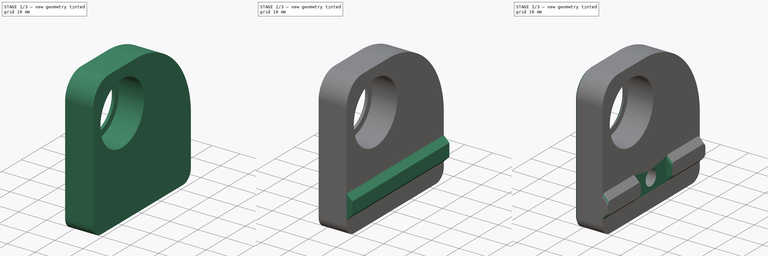
[diagram: build sequence overview — one tinted view per stage of 3, left to right]
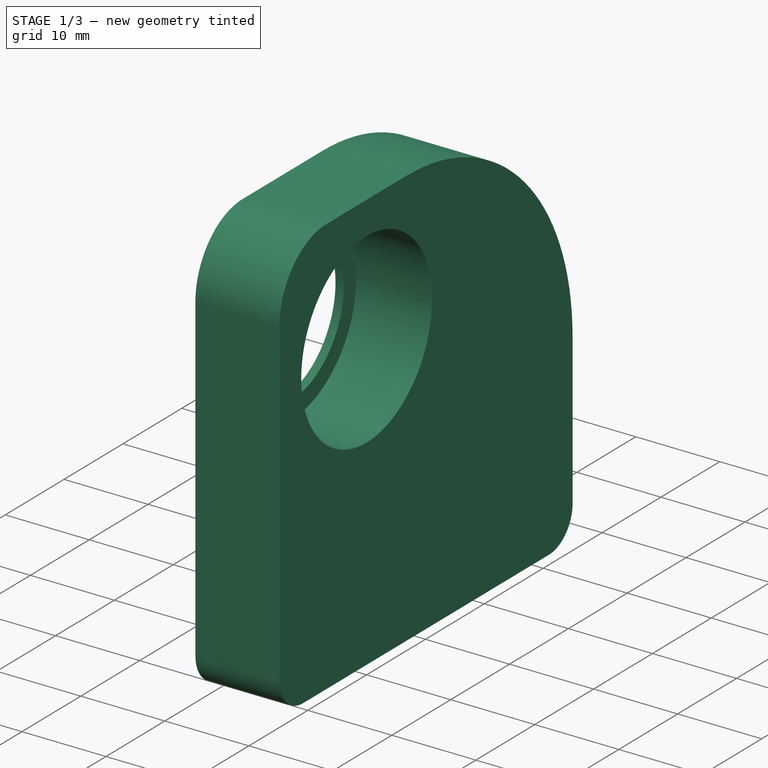
[diagram: stage 1 of 3 — iso view after this stage's code; geometry added in this stage tinted green]
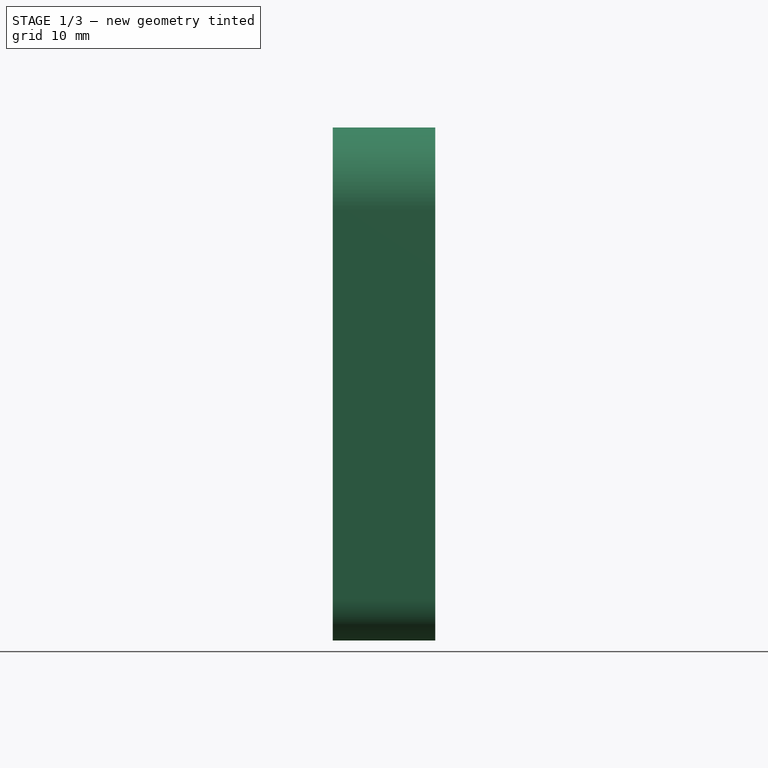
[diagram: stage 1 of 3 — front view after this stage's code; geometry added in this stage tinted green]
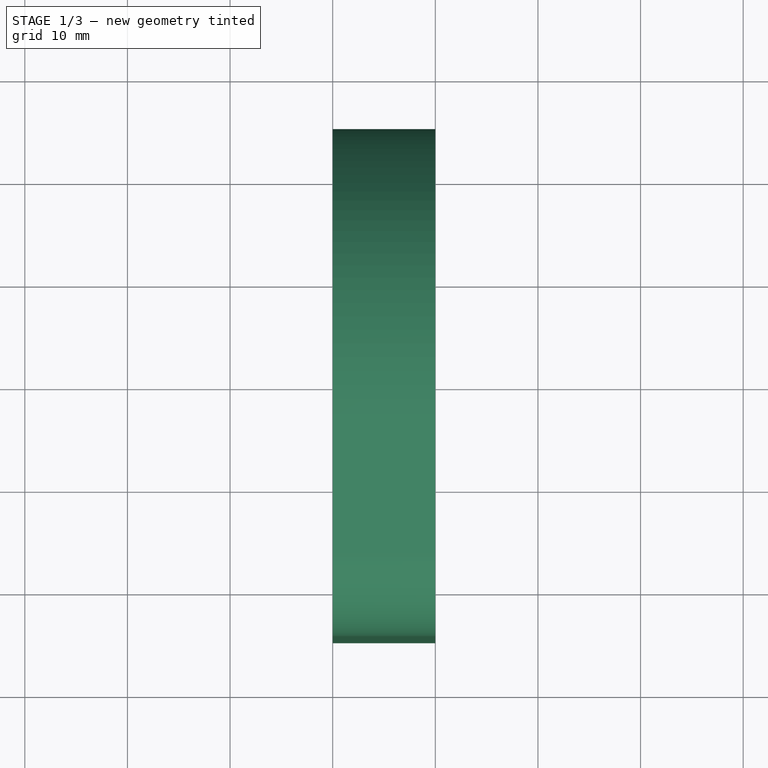
[diagram: stage 1 of 3 — top view after this stage's code; geometry added in this stage tinted green]
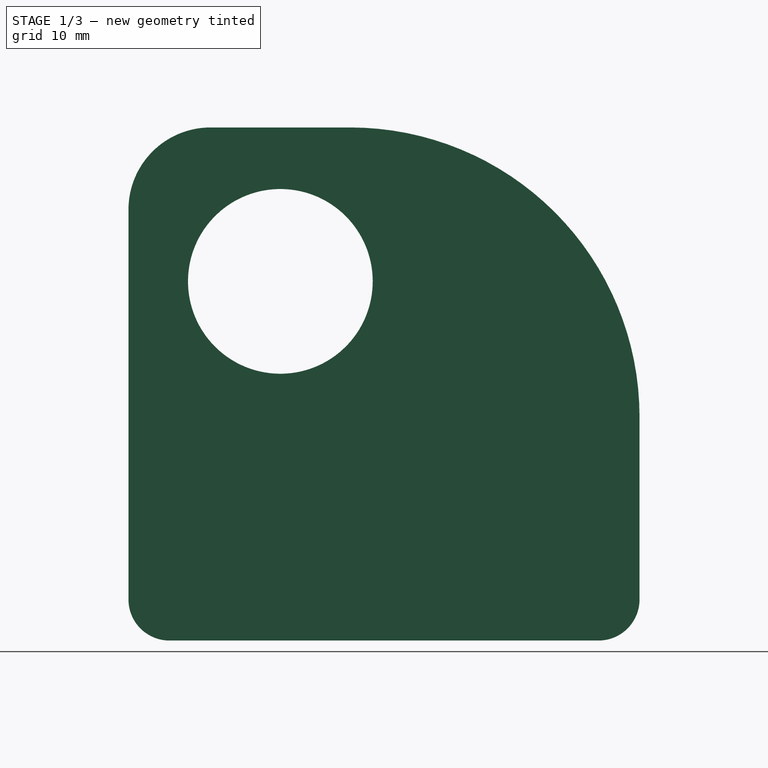
[diagram: stage 1 of 3 — right view after this stage's code; geometry added in this stage tinted green]
FCSTD DOCUMENT  (FreeCAD 1.0R39109 (Git))
Label: front-bearing-block-right
License: All rights reserved
LicenseURL: http://en.wikipedia.org/wiki/All_rights_reserved
objects: Sketcher::SketchObject×6, PartDesign::Pocket×4, PartDesign::Pad×2, App::Link×2, PartDesign::Fillet×1, PartDesign::Chamfer×1, PartDesign::Body×1, App::Part×1
note: 37 computed .brp shape members not serialized (recipe doc carries the construction recipe); baked Part::Feature solids carry a one-line shape summary decoded from their .brp
EXTERNAL_REF file=../standard-stuff.FCStd obj=Body
EXTERNAL_REF file=../standard-stuff.FCStd obj=Group001

FEATURE [Sketcher::SketchObject] Sketch101
  ArcFitTolerance = 0
  AttachmentSupport = -> [YZ_Plane209]
  FullyConstrained = true
  MakeInternals = false
  MapMode = 5
  Placement = pos=(0,0,0) rot=(0.57735,0.57735,0.57735;2.0944rad)
  expr: Constraints[4] = 35 - 20.2
  sketch-geometry (14):
    g0: LineSegment StartX=-10.8 StartY=0 StartZ=0 EndX=31 EndY=0 EndZ=0
    g1: LineSegment StartX=35 StartY=4 StartZ=0 EndX=35 EndY=21.8 EndZ=0
    g2: LineSegment StartX=-14.8 StartY=42 StartZ=0 EndX=-14.8 EndY=4 EndZ=0
    g3: Circle [constr] CenterX=0 CenterY=35 CenterZ=0 NormalX=0 NormalY=0 NormalZ=1 AngleXU=0 Radius=11
    g4: Circle CenterX=0 CenterY=35 CenterZ=0 NormalX=0 NormalY=0 NormalZ=1 AngleXU=0 Radius=9
    g5: GeomPoint [constr] X=0 Y=46 Z=0
    g6: GeomPoint [constr] X=0 Y=50 Z=0
    g7: ArcOfCircle CenterX=-10.8 CenterY=4 CenterZ=0 NormalX=0 NormalY=0 NormalZ=1 AngleXU=0 Radius=4 StartAngle=3.14159 EndAngle=4.71239
    g8: GeomPoint [constr] X=-14.8 Y=0 Z=0
    g9: ArcOfCircle CenterX=31 CenterY=4 CenterZ=0 NormalX=0 NormalY=0 NormalZ=1 AngleXU=0 Radius=4 StartAngle=4.71239 EndAngle=6.28319
    g10: GeomPoint [constr] X=35 Y=0 Z=0
    g11: ArcOfCircle CenterX=-6.8 CenterY=42 CenterZ=0 NormalX=0 NormalY=0 NormalZ=1 AngleXU=0 Radius=8 StartAngle=1.5708 EndAngle=3.14159
    g12: ArcOfCircle CenterX=6.8 CenterY=21.8 CenterZ=0 NormalX=0 NormalY=0 NormalZ=1 AngleXU=0 Radius=28.2 StartAngle=-2.7e-15 EndAngle=1.5708
    g13: LineSegment StartX=-6.8 StartY=50 StartZ=0 EndX=6.8 EndY=50 EndZ=0
  constraints (32):
    c: PointOnObject(g10,g-1)
    c: Horizontal(g0)
    c: Vertical(g1)
    c: Vertical(g2)
    c: DistanceX(g8,g-1) = 14.8
    c: Diameter(g3) = 22
    c: Diameter(g4) = 18
    c: PointOnObject(g5,g3)
    c: PointOnObject(g5,g-2)
    c: PointOnObject(g6,g-2)
    c: PointOnObject(g8,g0)
    c: PointOnObject(g8,g2)
    c: Tangent(g0,g7) = -1.5708
    c: Tangent(g2,g7) = -1.5708
    c: PointOnObject(g10,g0)
    c: PointOnObject(g10,g1)
    c: Tangent(g0,g9) = -1.5708
    c: Tangent(g1,g9) = -1.5708
    c: Equal(g9,g7)
    c: DistanceY(g6) = 50
    c: DistanceX(g10) = 35
    c: Horizontal(g13)
    c: Tangent(g12,g13) = 1.5708
    c: Tangent(g13,g11) = 1.5708
    c: Tangent(g1,g12) = -1.5708
    c: Tangent(g2,g11) = -1.5708
    c: Symmetric(g12,g11,g6)
    c: Radius(g11) = 8
    c: Radius(g7) = 4
    c: Coincident(g4,g3)
    c: PointOnObject(g4,g-2)
    c: DistanceY(g4) = 35
FEATURE [PartDesign::Pad] Pad031
  Direction = (1,0,0)
  Length = 10
  Length2 = 10
  Placement = pos=(0,0,0) rot=(1,1,1;2.0944rad)
  Profile = -> Sketch101
  ReferenceAxis = -> Sketch101 [N_Axis]
  Reversed = true
  Suppressed = false
  Type = 0
FEATURE [Sketcher::SketchObject] Sketch102
  ArcFitTolerance = 0
  AttachmentOffset = pos=(0,0,-9) rot=(0,0,1;0rad)
  AttachmentSupport = -> [YZ_Plane209]
  FullyConstrained = true
  MakeInternals = false
  MapMode = 5
  Placement = pos=(-9,0,0) rot=(0.57735,0.57735,0.57735;2.0944rad)
  sketch-geometry (1):
    g0: Circle CenterX=0 CenterY=35 CenterZ=0 NormalX=0 NormalY=0 NormalZ=1 AngleXU=0 Radius=11.1
  constraints (3):
    c: PointOnObject(g0,g-2)
    c: Diameter(g0) = 22.2
    c: DistanceY(g0) = 35
FEATURE [PartDesign::Pocket] Pocket048
  BaseFeature = -> Pad031
  Direction = (-1,0,0)
  Length = 5
  Length2 = 5
  Placement = pos=(0,0,0) rot=(1,1,1;2.0944rad)
  Profile = -> Sketch102
  ReferenceAxis = -> Sketch102 [N_Axis]
  Reversed = true
  Suppressed = false
  Type = 1
FEATURE [Sketcher::SketchObject] Sketch103
  ArcFitTolerance = 0
  AttachmentOffset = pos=(0,0,-4) rot=(0,0,1;0rad)
  AttachmentSupport = -> [YZ_Plane209]
  FullyConstrained = true
  MakeInternals = false
  MapMode = 5
  Placement = pos=(-4,0,0) rot=(0.57735,0.57735,0.57735;2.0944rad)
  sketch-geometry (4):
    g0: Circle CenterX=10 CenterY=10 CenterZ=0 NormalX=0 NormalY=0 NormalZ=1 AngleXU=0 Radius=4.5
    g1: GeomPoint [constr] X=-15 Y=0 Z=0
    g2: GeomPoint [constr] X=35 Y=0 Z=0
    g3: GeomPoint [constr] X=10 Y=0 Z=0
  constraints (8):
    c: DistanceY(g0) = 10
    c: Diameter(g0) = 9
    c: PointOnObject(g1,g-1)
    c: PointOnObject(g2,g-1)
    c: DistanceX(g1) = -15
    c: Symmetric(g2,g1,g3)
    c: Vertical(g0,g3)
    c: DistanceX(g1,g2) = 50
FEATURE [PartDesign::Pocket] Pocket049
  BaseFeature = -> Pocket048
  Direction = (-1,0,0)
  Length = 5
  Length2 = 5
  Placement = pos=(0,0,0) rot=(1,1,1;2.0944rad)
  Profile = -> Sketch103
  ReferenceAxis = -> Sketch103 [N_Axis]
  Suppressed = false
  Type = 1
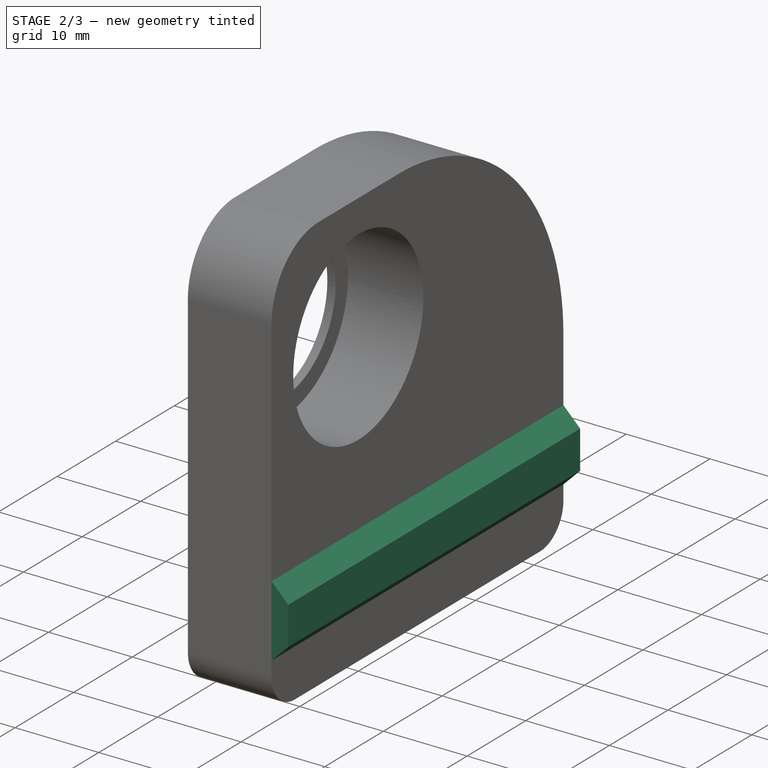
[diagram: stage 2 of 3 — iso view after this stage's code; geometry added in this stage tinted green]
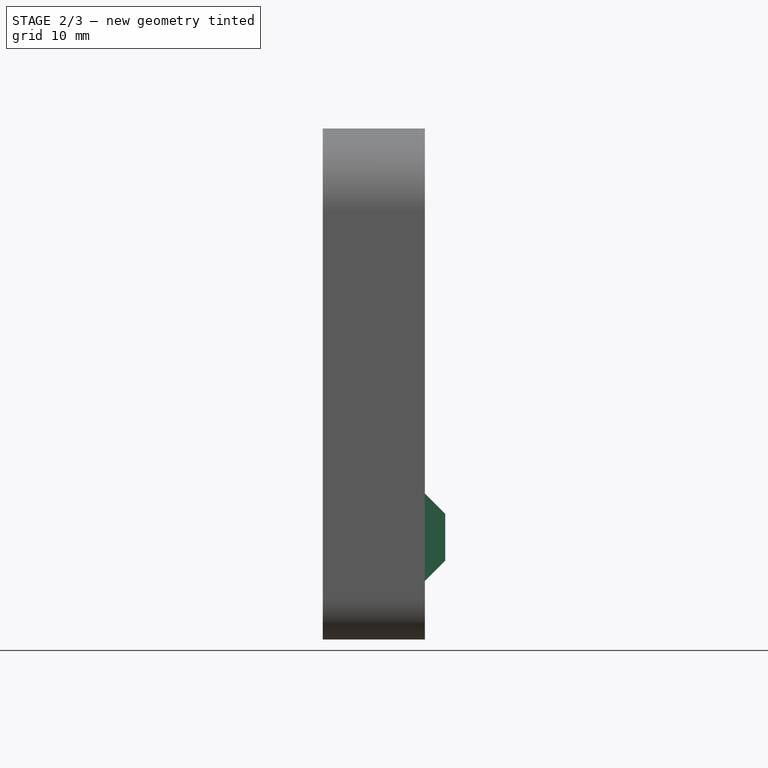
[diagram: stage 2 of 3 — front view after this stage's code; geometry added in this stage tinted green]
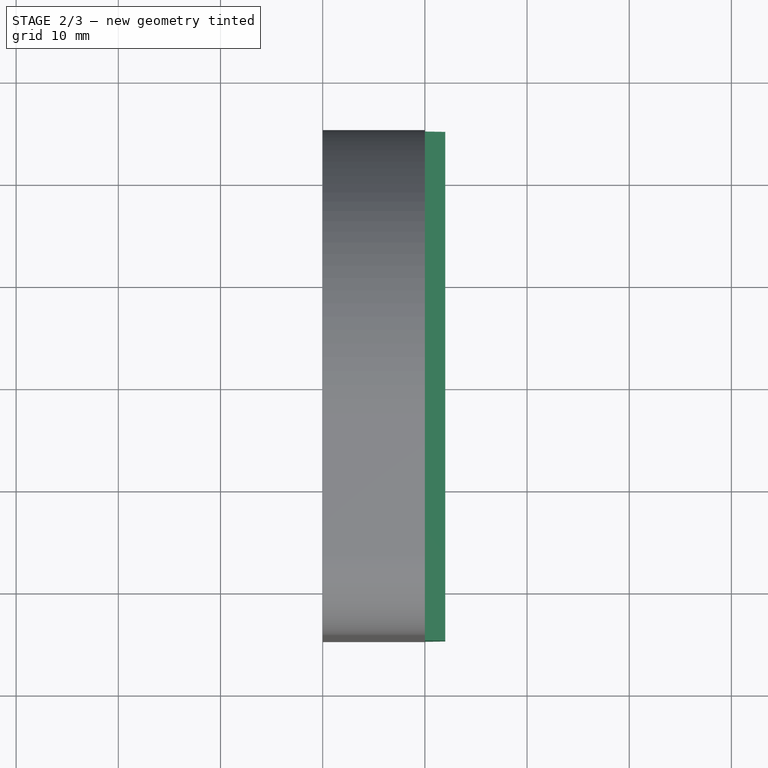
[diagram: stage 2 of 3 — top view after this stage's code; geometry added in this stage tinted green]
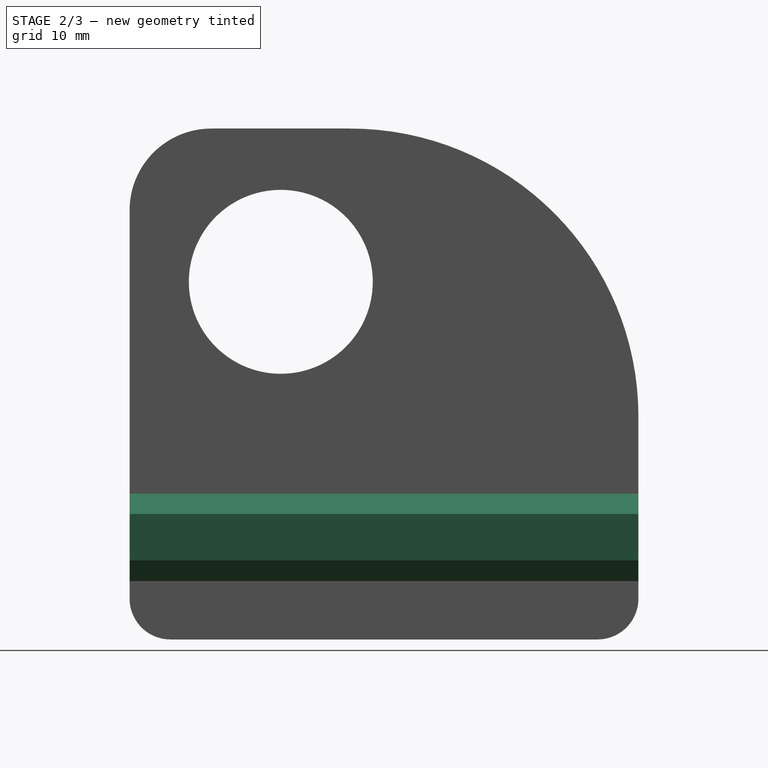
[diagram: stage 2 of 3 — right view after this stage's code; geometry added in this stage tinted green]
FEATURE [Sketcher::SketchObject] Sketch112
  ArcFitTolerance = 0
  AttachmentSupport = -> [YZ_Plane209]
  FullyConstrained = true
  MakeInternals = false
  MapMode = 5
  Placement = pos=(0,0,0) rot=(0.57735,0.57735,0.57735;2.0944rad)
  sketch-geometry (1):
    g0: Circle CenterX=10 CenterY=10 CenterZ=0 NormalX=0 NormalY=0 NormalZ=1 AngleXU=0 Radius=2.75
  constraints (3):
    c: Diameter(g0) = 5.5
    c: DistanceY(g0) = 10
    c: DistanceX(g0) = 10
FEATURE [PartDesign::Pocket] Pocket056
  BaseFeature = -> Pocket049
  Direction = (-1,0,0)
  Length = 3.7
  Length2 = 5
  Placement = pos=(0,0,0) rot=(1,1,1;2.0944rad)
  Profile = -> Sketch112
  ReferenceAxis = -> Sketch112 [N_Axis]
  Suppressed = false
  Type = 0
  expr: Length = 4 - 0.3
FEATURE [Sketcher::SketchObject] Sketch365
  ArcFitTolerance = 0
  AttachmentOffset = pos=(0,0,15) rot=(0,0,1;0rad)
  AttachmentSupport = -> [XZ_Plane209]
  FullyConstrained = true
  MakeInternals = false
  MapMode = 5
  Placement = pos=(0,-15,3.3e-15) rot=(1,0,0;1.5708rad)
  sketch-geometry (8):
    g0: LineSegment StartX=0 StartY=5.72426 StartZ=0 EndX=0 EndY=14.2757 EndZ=0
    g1: LineSegment StartX=0 StartY=14.2757 StartZ=0 EndX=2 EndY=12.2757 EndZ=0
    g2: LineSegment StartX=2 StartY=12.2757 StartZ=0 EndX=2 EndY=7.72426 EndZ=0
    g3: LineSegment StartX=2 StartY=7.72426 StartZ=0 EndX=0 EndY=5.72426 EndZ=0
    g4: GeomPoint [constr] X=0 Y=10 Z=0
    g5: GeomPoint [constr] X=2 Y=10 Z=0
    g6: GeomPoint [constr] X=2 Y=12.7 Z=0
    g7: GeomPoint [constr] X=2 Y=7.3 Z=0
  constraints (17):
    c: PointOnObject(g0,g-2)
    c: PointOnObject(g0,g-2)
    c: Coincident(g0,g1)
    c: Coincident(g1,g2)
    c: Coincident(g2,g3)
    c: Coincident(g3,g0)
    c: Symmetric(g2,g1,g5)
    c: Vertical(g2)
    c: Horizontal(g4,g5)
    c: Symmetric(g0,g0,g4)
    c: DistanceY(g4) = 10
    c: Angle(g1) = -0.785398
    c: DistanceX(g1,g1) = 2
    c: Symmetric(g7,g6,g5)
    c: Vertical(g6,g1)
    c: DistanceY(g7,g6) = 5.4
    c: Distance(g6,g1) = 0.3
FEATURE [PartDesign::Pad] Pad091
  BaseFeature = -> Pocket056
  Direction = (0,-1,2e-16)
  Length = 50
  Length2 = -0.2
  Placement = pos=(0,0,0) rot=(1,1,1;2.0944rad)
  Profile = -> Sketch365
  ReferenceAxis = -> Sketch365 [N_Axis]
  Reversed = true
  Suppressed = false
  Type = 4
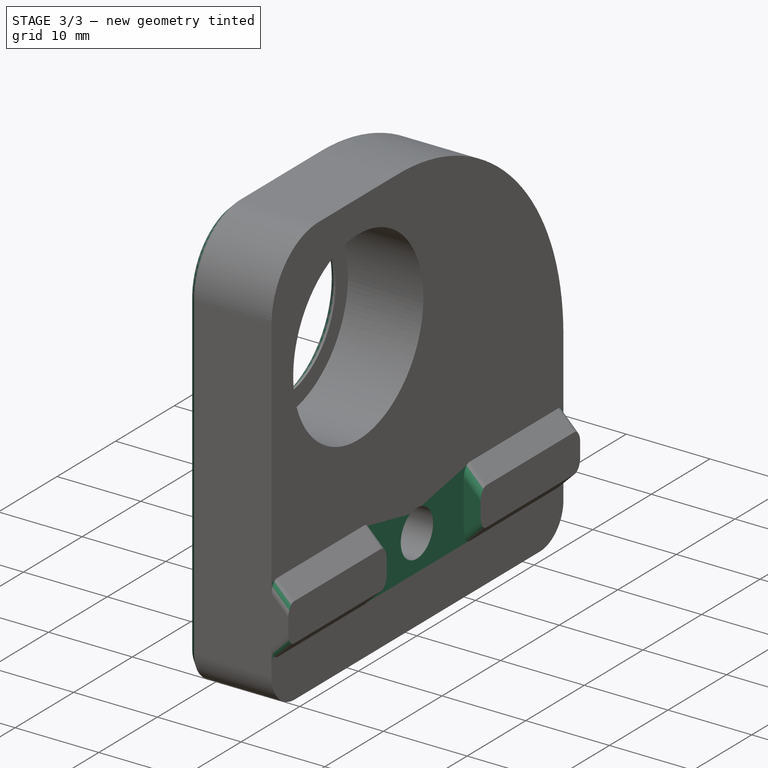
[diagram: stage 3 of 3 — iso view after this stage's code; geometry added in this stage tinted green]
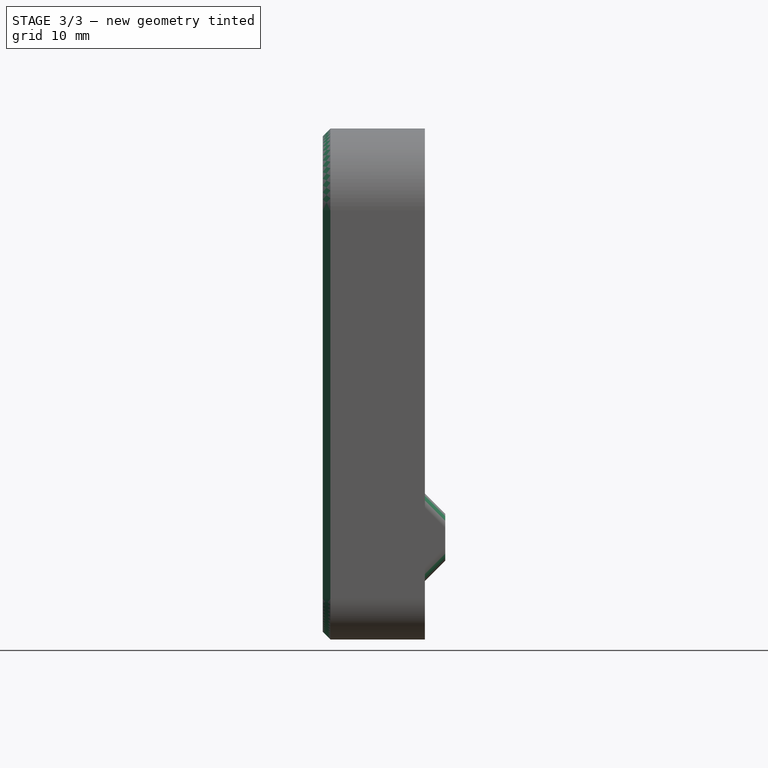
[diagram: stage 3 of 3 — front view after this stage's code; geometry added in this stage tinted green]
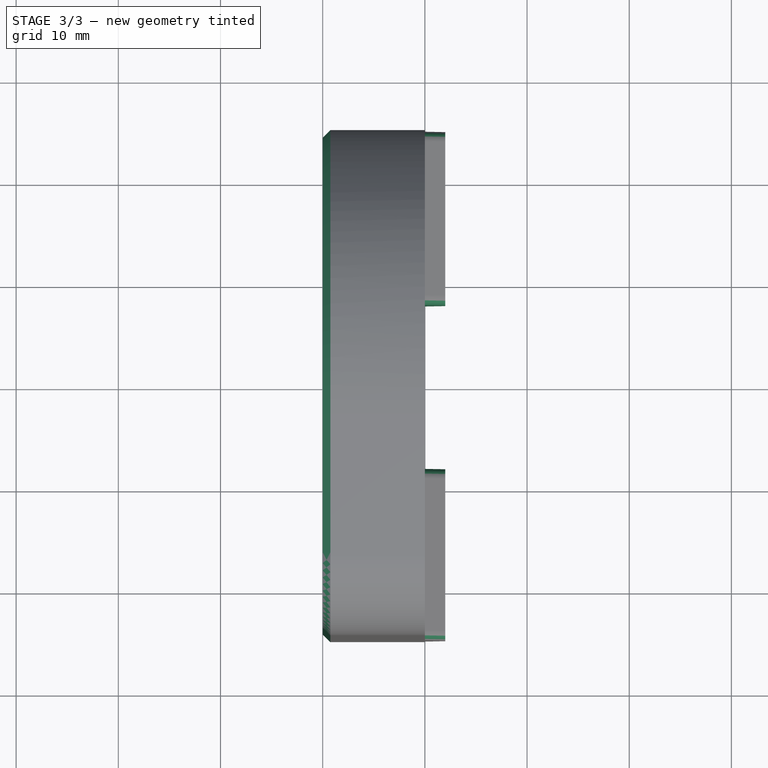
[diagram: stage 3 of 3 — top view after this stage's code; geometry added in this stage tinted green]
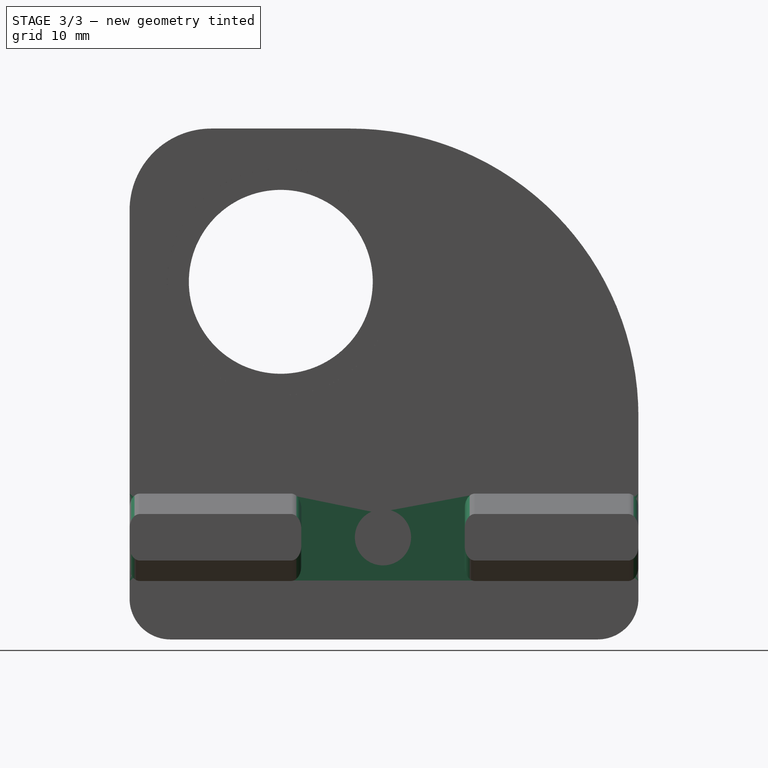
[diagram: stage 3 of 3 — right view after this stage's code; geometry added in this stage tinted green]
FEATURE [Sketcher::SketchObject] Sketch366
  ArcFitTolerance = 0
  AttachmentSupport = -> [XY_Plane209]
  FullyConstrained = true
  MakeInternals = false
  MapMode = 5
  sketch-geometry (5):
    g0: GeomPoint [constr] X=0 Y=10 Z=0
    g1: LineSegment StartX=0 StartY=18 StartZ=0 EndX=2 EndY=18 EndZ=0
    g2: LineSegment StartX=2 StartY=18 StartZ=0 EndX=2 EndY=2 EndZ=0
    g3: LineSegment StartX=2 StartY=2 StartZ=0 EndX=0 EndY=2 EndZ=0
    g4: LineSegment StartX=0 StartY=2 StartZ=0 EndX=0 EndY=18 EndZ=0
  constraints (13):
    c: PointOnObject(g0,g-2)
    c: DistanceY(g0) = 10
    c: Coincident(g1,g2)
    c: Coincident(g2,g3)
    c: Coincident(g3,g4)
    c: Coincident(g4,g1)
    c: Horizontal(g1)
    c: Horizontal(g3)
    c: Vertical(g2)
    c: Vertical(g4)
    c: Symmetric(g3,g1,g0)
    c: DistanceY(g4,g4) = 16
    c: DistanceX(g1,g1) = 2
FEATURE [PartDesign::Pocket] Pocket231
  BaseFeature = -> Pad091
  Direction = (0,0,-1)
  Length = 5
  Length2 = 5
  Midplane = true
  Placement = pos=(0,0,0) rot=(1,1,1;2.0944rad)
  Profile = -> Sketch366
  ReferenceAxis = -> Sketch366 [N_Axis]
  Refine = true
  Suppressed = false
  Type = 1
FEATURE [PartDesign::Fillet] Fillet013
  Base = -> Pocket231 [Edge56,Edge58,Edge59,Edge54,Edge45,Edge40,Edge36,Edge38]
  BaseFeature = -> Pocket231
  Placement = pos=(0,0,0) rot=(1,1,1;2.0944rad)
  Radius = 1
  SupportTransform = false
  Suppressed = false
  UseAllEdges = false
FEATURE [PartDesign::Chamfer] Chamfer016
  Angle = 45
  Base = -> Fillet013 [Edge10,Edge58,Edge59]
  BaseFeature = -> Fillet013
  ChamferType = 0
  FlipDirection = false
  Placement = pos=(0,0,0) rot=(1,1,1;2.0944rad)
  Size = 0.75
  Size2 = 1
  SupportTransform = false
  Suppressed = false
  UseAllEdges = false
FEATURE [PartDesign::Body] Body075  label="z-motion-front-bearing-block-right"
  AllowCompound = false
  Group = -> [Sketch101,Pad031,Sketch102,Pocket048,Sketch103,Pocket049,Sketch112,Pocket056,Sketch365,Pad091,Sketch366,Pocket231,Fillet013,Chamfer016]
  Origin = -> Origin209
  Tip = -> Chamfer016
FEATURE [App::Link] Link  label="bearing"
  LinkPlacement = pos=(-5,0,35) rot=(0,1,0;1.5708rad)
  LinkedObject = -> <external ../standard-stuff.FCStd>#Body
  Placement = pos=(-5,0,35) rot=(0,1,0;1.5708rad)
FEATURE [App::Link] Link001  label="pulley"
  LinkPlacement = pos=(10,0,35) rot=(0,-1,0;1.5708rad)
  LinkTransform = true
  LinkedObject = -> <external ../standard-stuff.FCStd>#Group001 [Body071.]
  Placement = pos=(10,0,35) rot=(0,-1,0;1.5708rad)
FEATURE [App::Part] Part  label="main"
  Group = -> [Body075,Link,Link001]
  Origin = -> Origin
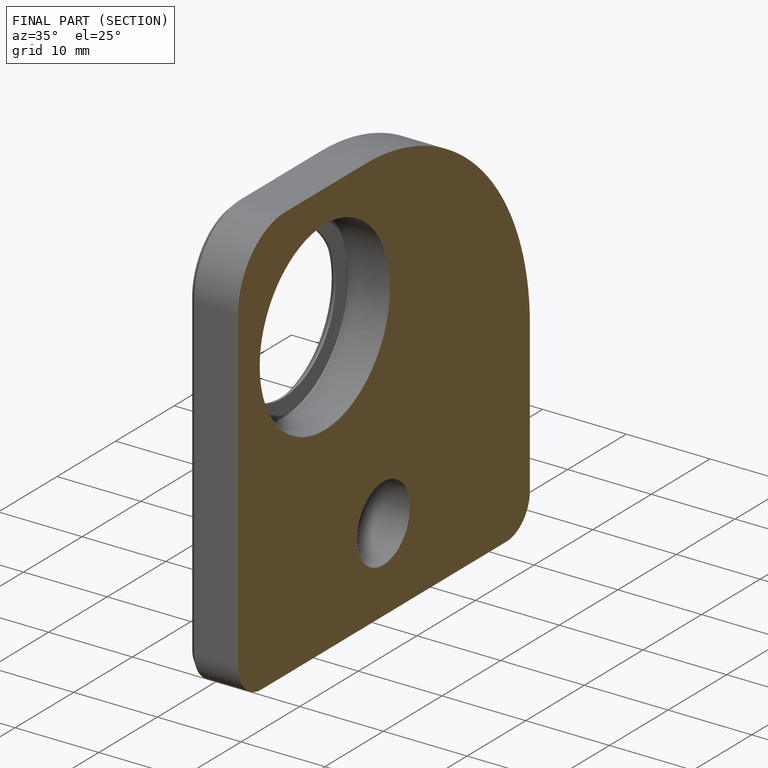
[diagram: finished part — half-section view (interior)]
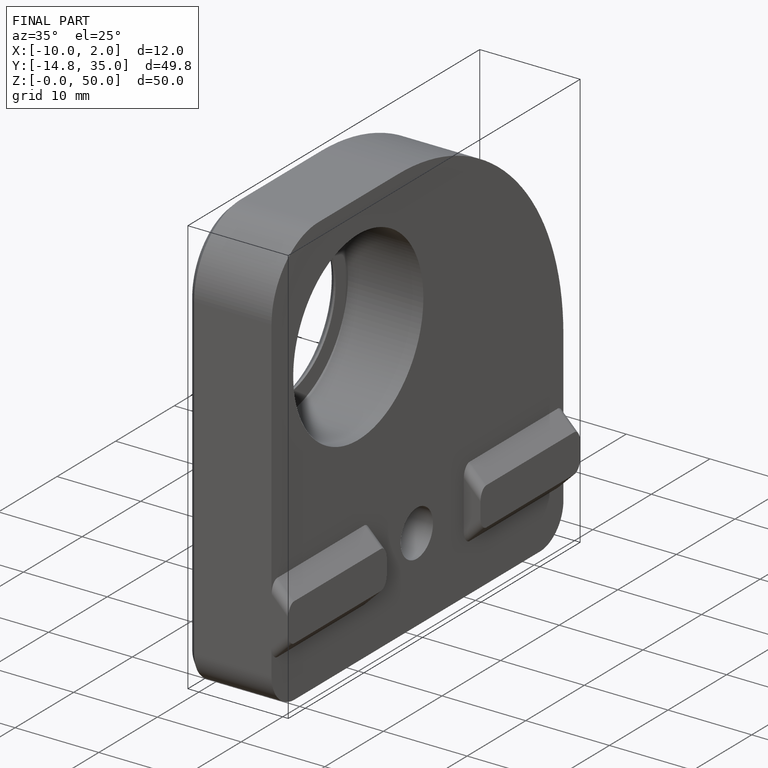
[diagram: finished part — iso view with bounding-box wireframe]
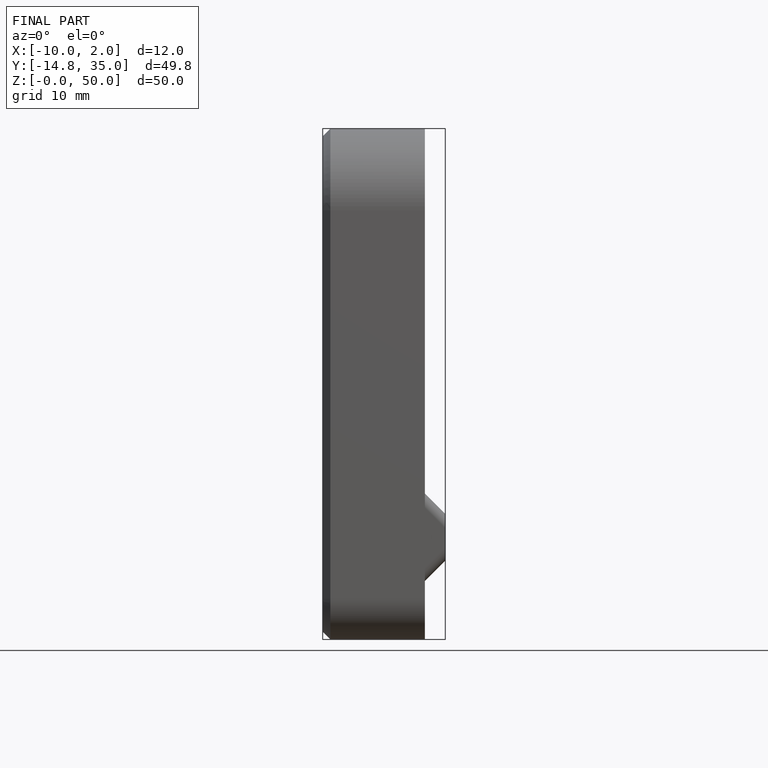
[diagram: finished part — front view with bounding-box wireframe]
